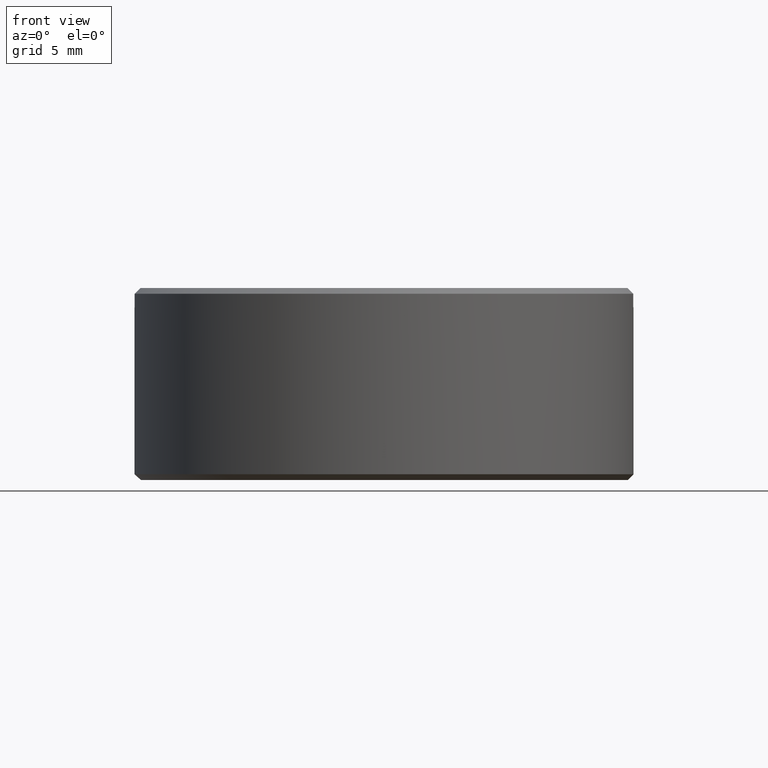
[diagram: clean part render]
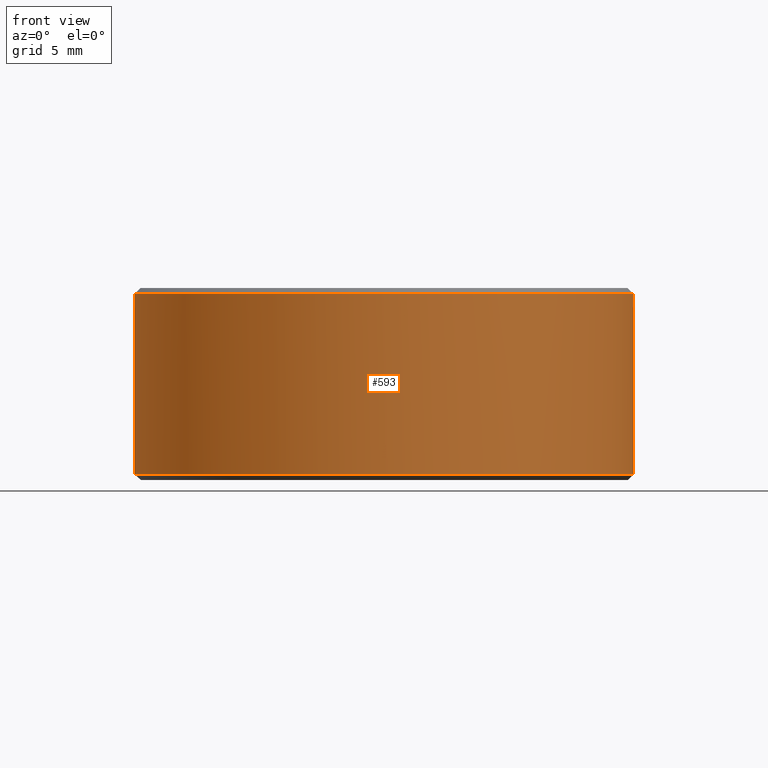
[diagram: same view with one face highlighted and labeled with its STEP entity id]
A machine part, front view. The second image highlights one B-rep face of the part: STEP entity #593.
In plain terms, the highlighted cylindrical surface (bore or boss wall) has radius 13 mm, axis along (-0, -0, -1).
Its self-contained STEP definition (entity closure, byte-faithful):
#18 = EDGE_LOOP ( 'NONE', ( #1511, #523, #463, #915, #285, #1023, #202, #1329 ) ) ;
#30 = DIRECTION ( 'NONE',  ( -1.000000000000000000, 0.000000000000000000, 0.000000000000000000 ) ) ;
#37 = FACE_OUTER_BOUND ( 'NONE', #18, .T. ) ;
#92 = AXIS2_PLACEMENT_3D ( 'NONE', #1152, #305, #30 ) ;
#99 = CARTESIAN_POINT ( 'NONE',  ( 12.98836017363239037, -0.5500000000000000444, 4.000000000000000000 ) ) ;
#177 = CARTESIAN_POINT ( 'NONE',  ( 12.98836017363239037, -0.5500000000000000444, 4.000000000000000000 ) ) ;
#191 = DIRECTION ( 'NONE',  ( 0.000000000000000000, -0.000000000000000000, -1.000000000000000000 ) ) ;
#202 = ORIENTED_EDGE ( 'NONE', *, *, #1140, .F. ) ;
#226 = VERTEX_POINT ( 'NONE', #351 ) ;
#280 = CARTESIAN_POINT ( 'NONE',  ( 12.98836017363239037, -0.5500000000000000444, 4.699999999999988631 ) ) ;
#281 = DIRECTION ( 'NONE',  ( -1.000000000000000000, 0.000000000000000000, 0.000000000000000000 ) ) ;
#284 = EDGE_CURVE ( 'NONE', #1328, #226, #1319, .T. ) ;
#285 = ORIENTED_EDGE ( 'NONE', *, *, #296, .T. ) ;
#296 = EDGE_CURVE ( 'NONE', #579, #1328, #835, .T. ) ;
#299 = CIRCLE ( 'NONE', #1054, 13.00000000000000355 ) ;
#305 = DIRECTION ( 'NONE',  ( -0.000000000000000000, -0.000000000000000000, -1.000000000000000000 ) ) ;
#351 = CARTESIAN_POINT ( 'NONE',  ( -12.98836017363239037, -0.5500000000000000444, 4.000000000000000000 ) ) ;
#374 = VECTOR ( 'NONE', #1133, 1000.000000000000000 ) ;
#407 = VERTEX_POINT ( 'NONE', #1123 ) ;
#422 = CARTESIAN_POINT ( 'NONE',  ( -13.00000000000000355, 0.000000000000000000, -4.700000000000000178 ) ) ;
#425 = FACE_OUTER_BOUND ( 'NONE', #1150, .T. ) ;
#463 = ORIENTED_EDGE ( 'NONE', *, *, #1510, .F. ) ;
#496 = CIRCLE ( 'NONE', #706, 13.00000000000000355 ) ;
#523 = ORIENTED_EDGE ( 'NONE', *, *, #1525, .T. ) ;
#544 = EDGE_CURVE ( 'NONE', #564, #407, #1174, .T. ) ;
#554 = AXIS2_PLACEMENT_3D ( 'NONE', #1587, #1469, #1238 ) ;
#564 = VERTEX_POINT ( 'NONE', #917 ) ;
#579 = VERTEX_POINT ( 'NONE', #280 ) ;
#593 = ADVANCED_FACE ( 'NONE', ( #425, #37 ), #647, .T. ) ;
#600 = CIRCLE ( 'NONE', #92, 13.00000000000000355 ) ;
#612 = LINE ( 'NONE', #1008, #374 ) ;
#634 = CARTESIAN_POINT ( 'NONE',  ( 0.000000000000000000, 0.000000000000000000, 4.000000000000000000 ) ) ;
#647 = CYLINDRICAL_SURFACE ( 'NONE', #945, 13.00000000000000355 ) ;
#691 = DIRECTION ( 'NONE',  ( -0.000000000000000000, -0.000000000000000000, -1.000000000000000000 ) ) ;
#706 = AXIS2_PLACEMENT_3D ( 'NONE', #634, #1000, #1234 ) ;
#713 = CARTESIAN_POINT ( 'NONE',  ( 12.98836017363239037, 0.5500000000000000444, 4.699999999999988631 ) ) ;
#714 = CARTESIAN_POINT ( 'NONE',  ( -12.98836017363239037, -0.5500000000000000444, 4.000000000000000000 ) ) ;
#790 = VECTOR ( 'NONE', #1089, 1000.000000000000000 ) ;
#812 = VECTOR ( 'NONE', #891, 1000.000000000000000 ) ;
#817 = CARTESIAN_POINT ( 'NONE',  ( 0.000000000000000000, 0.000000000000000000, 4.699999999999987743 ) ) ;
#830 = DIRECTION ( 'NONE',  ( -1.000000000000000000, 0.000000000000000000, 0.000000000000000000 ) ) ;
#835 = CIRCLE ( 'NONE', #1545, 13.00000000000000355 ) ;
#846 = CARTESIAN_POINT ( 'NONE',  ( 12.98836017363239037, 0.5500000000000000444, 4.000000000000000000 ) ) ;
#891 = DIRECTION ( 'NONE',  ( 0.000000000000000000, -0.000000000000000000, 1.000000000000000000 ) ) ;
#915 = ORIENTED_EDGE ( 'NONE', *, *, #1489, .T. ) ;
#917 = CARTESIAN_POINT ( 'NONE',  ( -12.98836017363239037, 0.5500000000000000444, 4.000000000000000000 ) ) ;
#920 = VECTOR ( 'NONE', #191, 1000.000000000000000 ) ;
#924 = VERTEX_POINT ( 'NONE', #422 ) ;
#945 = AXIS2_PLACEMENT_3D ( 'NONE', #1530, #1165, #1143 ) ;
#1000 = DIRECTION ( 'NONE',  ( 0.000000000000000000, 0.000000000000000000, 1.000000000000000000 ) ) ;
#1008 = CARTESIAN_POINT ( 'NONE',  ( 12.98836017363239037, 0.5500000000000000444, 4.000000000000000000 ) ) ;
#1023 = ORIENTED_EDGE ( 'NONE', *, *, #284, .T. ) ;
#1054 = AXIS2_PLACEMENT_3D ( 'NONE', #1057, #1144, #281 ) ;
#1057 = CARTESIAN_POINT ( 'NONE',  ( 0.000000000000000000, 0.000000000000000000, -4.700000000000000178 ) ) ;
#1078 = CIRCLE ( 'NONE', #554, 13.00000000000000355 ) ;
#1089 = DIRECTION ( 'NONE',  ( -0.000000000000000000, 0.000000000000000000, 1.000000000000000000 ) ) ;
#1123 = CARTESIAN_POINT ( 'NONE',  ( -12.98836017363239037, 0.5500000000000000444, 4.699999999999988631 ) ) ;
#1133 = DIRECTION ( 'NONE',  ( -0.000000000000000000, 0.000000000000000000, -1.000000000000000000 ) ) ;
#1140 = EDGE_CURVE ( 'NONE', #564, #226, #496, .T. ) ;
#1143 = DIRECTION ( 'NONE',  ( -1.000000000000000000, 0.000000000000000000, 0.000000000000000000 ) ) ;
#1144 = DIRECTION ( 'NONE',  ( 0.000000000000000000, 0.000000000000000000, 1.000000000000000000 ) ) ;
#1150 = EDGE_LOOP ( 'NONE', ( #1496 ) ) ;
#1152 = CARTESIAN_POINT ( 'NONE',  ( 0.000000000000000000, 0.000000000000000000, 4.699999999999987743 ) ) ;
#1165 = DIRECTION ( 'NONE',  ( -0.000000000000000000, -0.000000000000000000, -1.000000000000000000 ) ) ;
#1174 = LINE ( 'NONE', #1402, #812 ) ;
#1208 = LINE ( 'NONE', #99, #790 ) ;
#1234 = DIRECTION ( 'NONE',  ( -1.000000000000000000, 0.000000000000000000, 0.000000000000000000 ) ) ;
#1238 = DIRECTION ( 'NONE',  ( -1.000000000000000000, 1.687538997430237941E-14, 0.000000000000000000 ) ) ;
#1273 = VERTEX_POINT ( 'NONE', #177 ) ;
#1313 = EDGE_CURVE ( 'NONE', #407, #1458, #600, .T. ) ;
#1319 = LINE ( 'NONE', #714, #920 ) ;
#1328 = VERTEX_POINT ( 'NONE', #1403 ) ;
#1329 = ORIENTED_EDGE ( 'NONE', *, *, #544, .T. ) ;
#1357 = EDGE_CURVE ( 'NONE', #924, #924, #299, .T. ) ;
#1402 = CARTESIAN_POINT ( 'NONE',  ( -12.98836017363239037, 0.5500000000000000444, 4.000000000000000000 ) ) ;
#1403 = CARTESIAN_POINT ( 'NONE',  ( -12.98836017363239037, -0.5500000000000000444, 4.699999999999988631 ) ) ;
#1458 = VERTEX_POINT ( 'NONE', #713 ) ;
#1469 = DIRECTION ( 'NONE',  ( 0.000000000000000000, 0.000000000000000000, 1.000000000000000000 ) ) ;
#1489 = EDGE_CURVE ( 'NONE', #1273, #579, #1208, .T. ) ;
#1496 = ORIENTED_EDGE ( 'NONE', *, *, #1357, .T. ) ;
#1510 = EDGE_CURVE ( 'NONE', #1273, #1564, #1078, .T. ) ;
#1511 = ORIENTED_EDGE ( 'NONE', *, *, #1313, .T. ) ;
#1525 = EDGE_CURVE ( 'NONE', #1458, #1564, #612, .T. ) ;
#1530 = CARTESIAN_POINT ( 'NONE',  ( 0.000000000000000000, 0.000000000000000000, 5.000000000000000000 ) ) ;
#1545 = AXIS2_PLACEMENT_3D ( 'NONE', #817, #691, #830 ) ;
#1564 = VERTEX_POINT ( 'NONE', #846 ) ;
#1587 = CARTESIAN_POINT ( 'NONE',  ( 0.000000000000000000, 0.000000000000000000, 4.000000000000000000 ) ) ;